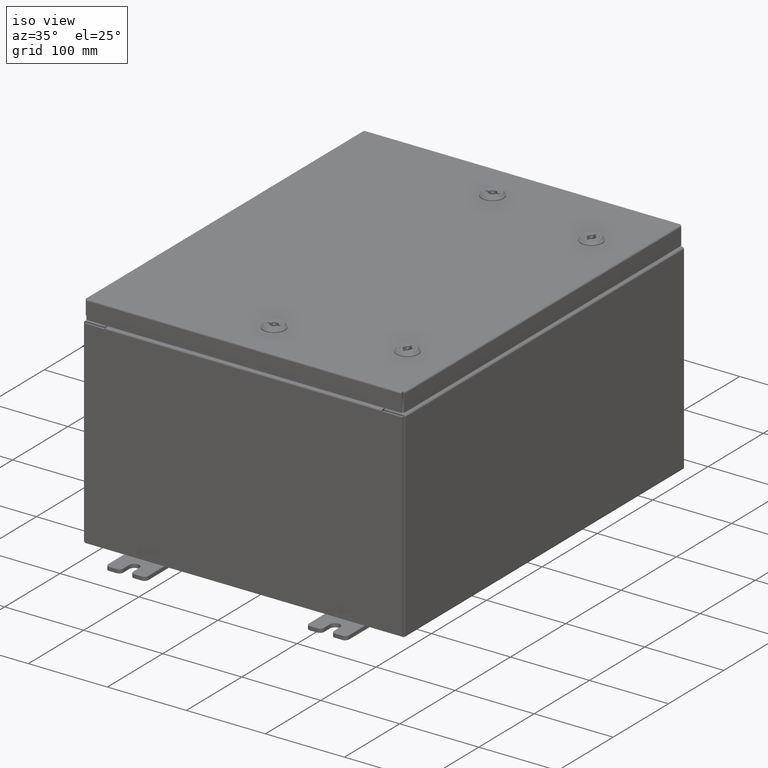
[diagram: clean part render]
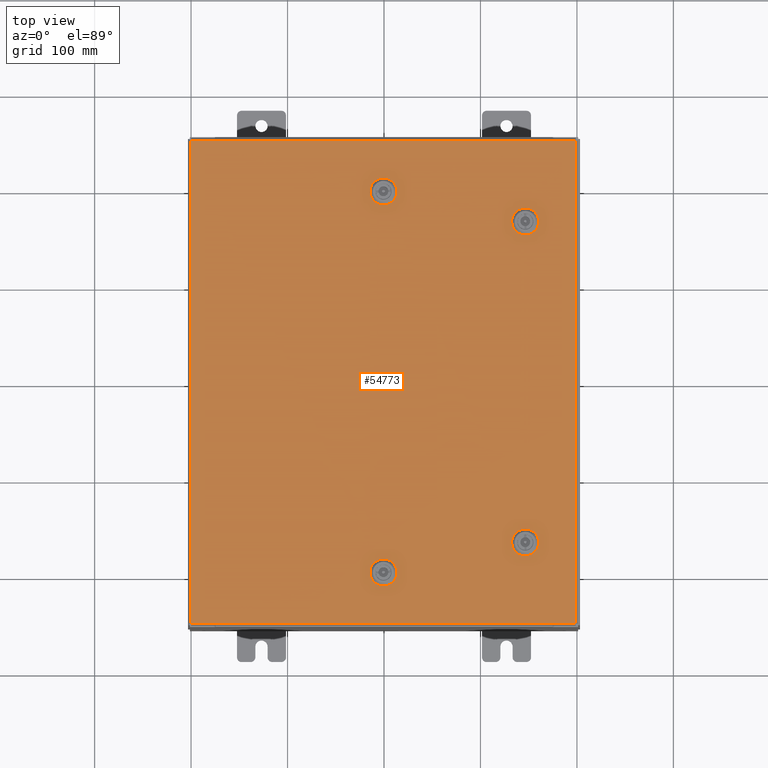
[diagram: tour spotlight — one face highlighted and labeled with its STEP entity id]
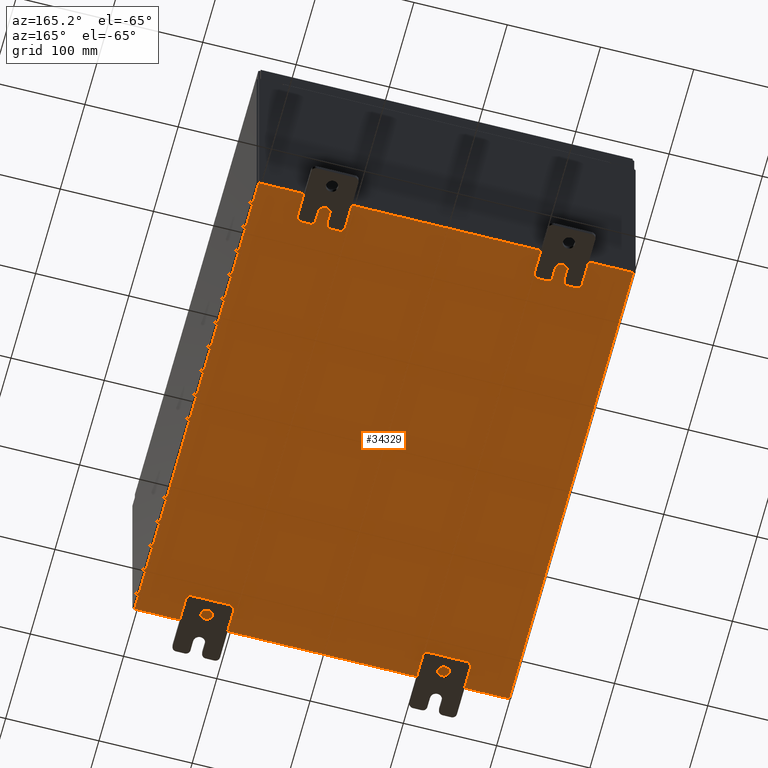
[diagram: tour spotlight — one face highlighted and labeled with its STEP entity id]
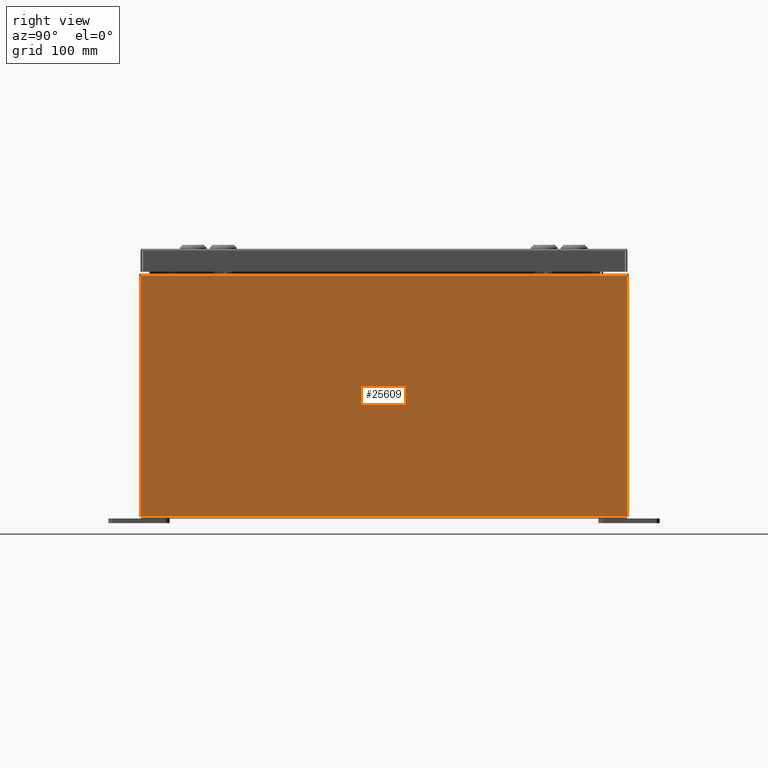
[diagram: tour spotlight — one face highlighted and labeled with its STEP entity id]
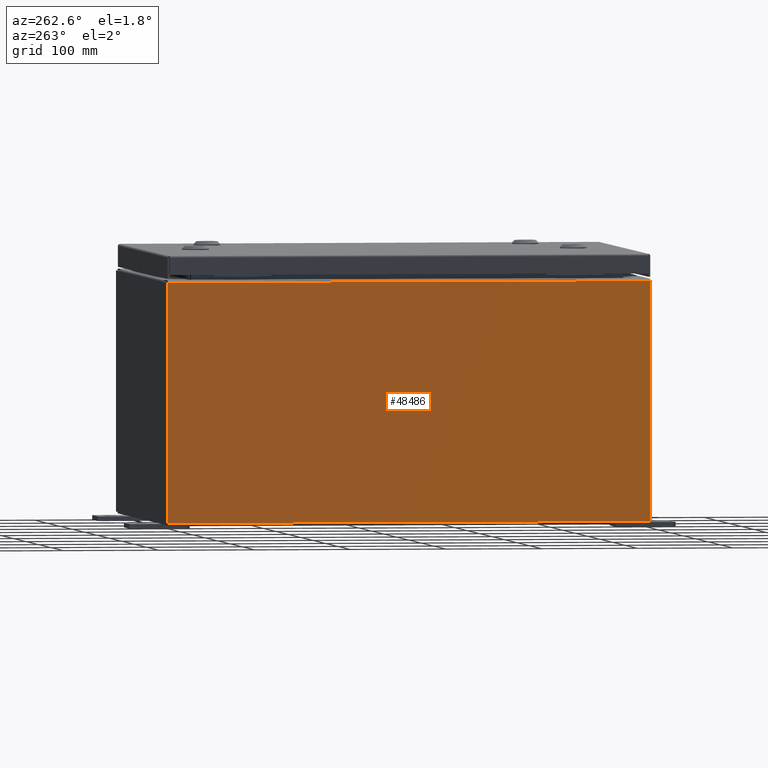
[diagram: tour spotlight — one face highlighted and labeled with its STEP entity id]
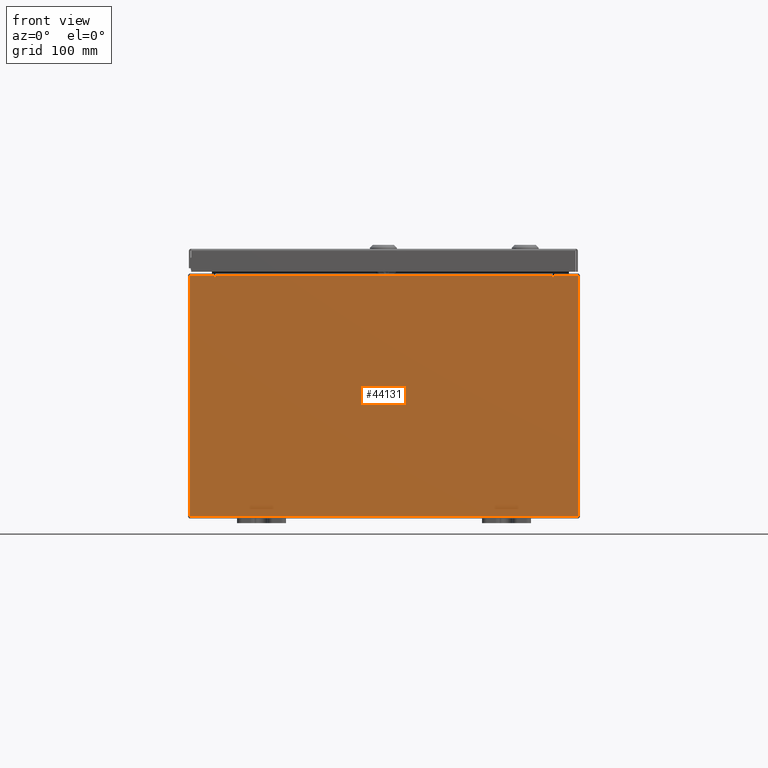
[diagram: tour spotlight — one face highlighted and labeled with its STEP entity id]
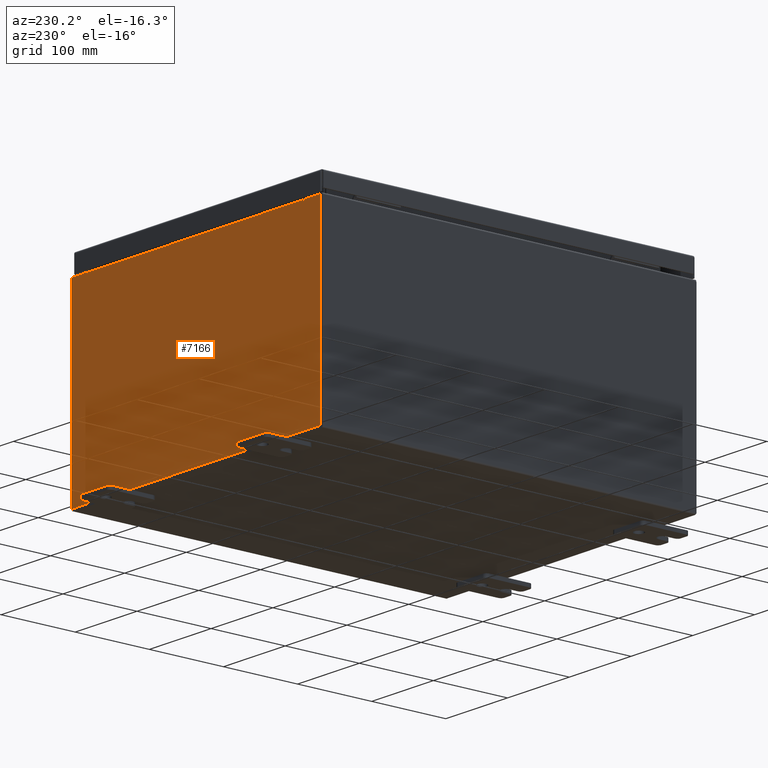
[diagram: tour spotlight — one face highlighted and labeled with its STEP entity id]
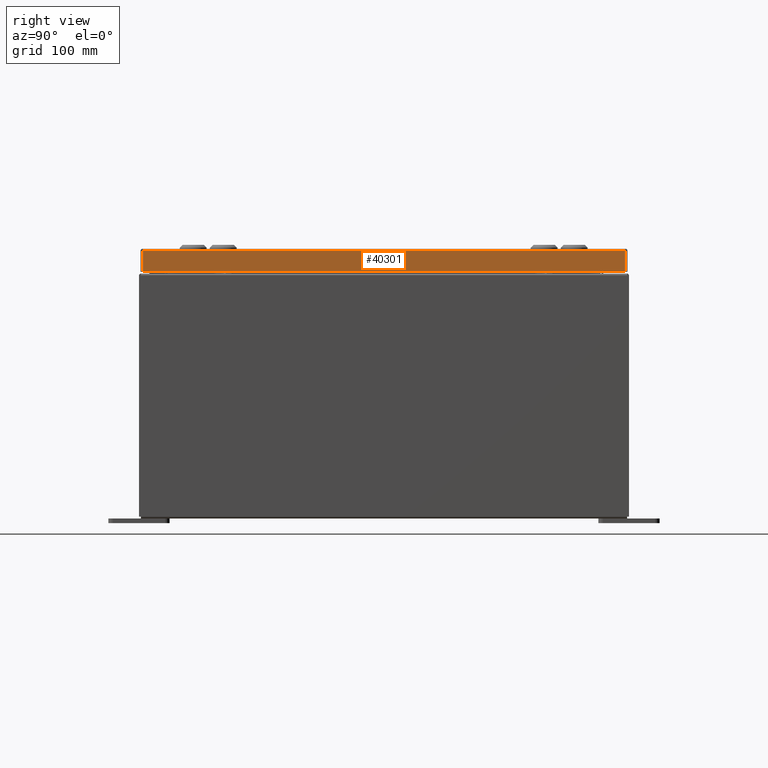
[diagram: tour spotlight — one face highlighted and labeled with its STEP entity id]
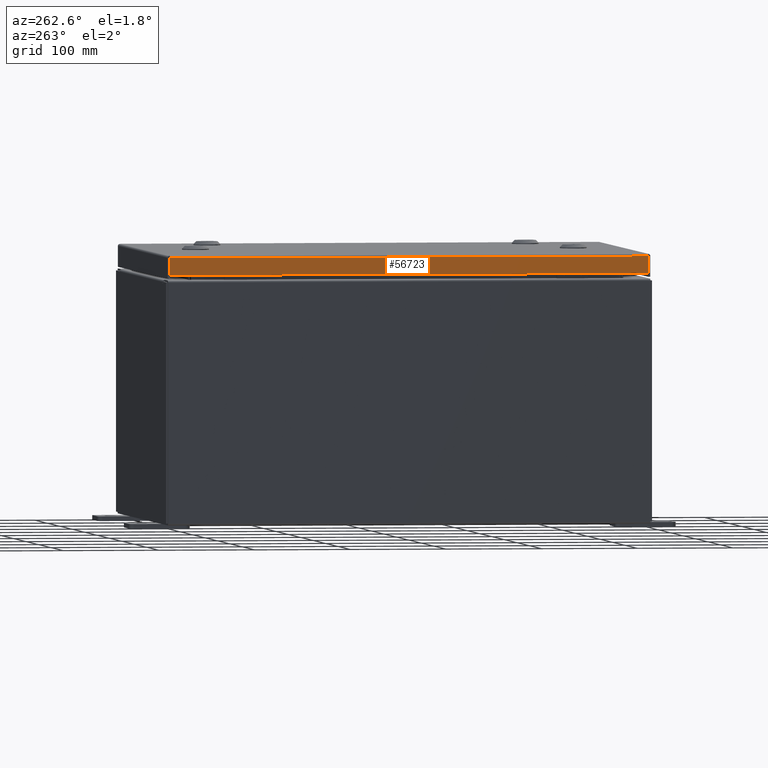
[diagram: tour spotlight — one face highlighted and labeled with its STEP entity id]
A machine part: a face-by-face anatomy tour. The part has 3794 B-rep faces; the first image is the clean iso view, then the 8 largest visible faces are spotlighted one at a time (largest first), each with its STEP entity span.

Face 1 — top view, entity #54773. In plain terms, the highlighted planar face has unit normal (0, 0, -1).
Definition (entity closure, byte-faithful):
#88 = CIRCLE ( 'NONE', #51247, 0.4424999999999972800 ) ;
#90 = VECTOR ( 'NONE', #53693, 39.37007874015748100 ) ;
#238 = CARTESIAN_POINT ( 'NONE',  ( 6.182800000000003000, 6.761952375267896700, 0.0000000000000000000 ) ) ;
#458 = CARTESIAN_POINT ( 'NONE',  ( 6.182800000000005600, 6.363047624732128100, 0.0000000000000000000 ) ) ;
#837 = CARTESIAN_POINT ( 'NONE',  ( 0.1994523752679067700, 8.182799999999980800, 0.0000000000000000000 ) ) ;
#918 = CARTESIAN_POINT ( 'NONE',  ( -0.1994523752678657400, -8.182799999999987900, 0.0000000000000000000 ) ) ;
#1329 = CARTESIAN_POINT ( 'NONE',  ( 0.1994523752678995500, 7.392799999999993200, 0.0000000000000000000 ) ) ;
#1589 = VERTEX_POINT ( 'NONE', #28337 ) ;
#2586 = VERTEX_POINT ( 'NONE', #48887 ) ;
#3014 = CARTESIAN_POINT ( 'NONE',  ( 0.1994523752679070700, -8.182799999999980800, -5.238409111919896100E-014 ) ) ;
#3247 = CARTESIAN_POINT ( 'NONE',  ( 0.4425000000000126100, 7.787799999999989200, 0.0000000000000000000 ) ) ;
#3693 = CARTESIAN_POINT ( 'NONE',  ( 7.849800000000000100, -9.849800000000001900, -2.219626494852214000E-016 ) ) ;
#4012 = EDGE_CURVE ( 'NONE', #2586, #1589, #9767, .T. ) ;
#4296 = CARTESIAN_POINT ( 'NONE',  ( 5.392800000000015400, 6.761952375267901200, 0.0000000000000000000 ) ) ;
#4460 = ORIENTED_EDGE ( 'NONE', *, *, #37584, .F. ) ;
#4526 = LINE ( 'NONE', #26519, #51751 ) ;
#4909 = ORIENTED_EDGE ( 'NONE', *, *, #25694, .T. ) ;
#5144 = VERTEX_POINT ( 'NONE', #37528 ) ;
#5743 = CARTESIAN_POINT ( 'NONE',  ( 0.1994523752678995500, 7.392799999999993200, 0.0000000000000000000 ) ) ;
#5851 = CARTESIAN_POINT ( 'NONE',  ( 5.392800000000015400, 6.761952375267901200, 0.0000000000000000000 ) ) ;
#6407 = CARTESIAN_POINT ( 'NONE',  ( 1.529834876451987200E-014, 7.787799999999989200, 0.0000000000000000000 ) ) ;
#6667 = DIRECTION ( 'NONE',  ( 0.0000000000000000000, 1.000000000000000000, 0.0000000000000000000 ) ) ;
#6804 = PLANE ( 'NONE',  #37503 ) ;
#7044 = EDGE_CURVE ( 'NONE', #55903, #12113, #12397, .T. ) ;
#8265 = ORIENTED_EDGE ( 'NONE', *, *, #20989, .F. ) ;
#8655 = DIRECTION ( 'NONE',  ( -0.0000000000000000000, -6.982962677686266700E-015, 1.000000000000000000 ) ) ;
#9272 = ORIENTED_EDGE ( 'NONE', *, *, #49510, .F. ) ;
#9437 = LINE ( 'NONE', #16533, #46773 ) ;
#9767 = LINE ( 'NONE', #39837, #26472 ) ;
#10013 = VECTOR ( 'NONE', #12850, 39.37007874015748100 ) ;
#11077 = ORIENTED_EDGE ( 'NONE', *, *, #43659, .F. ) ;
#11197 = VERTEX_POINT ( 'NONE', #23316 ) ;
#11303 = DIRECTION ( 'NONE',  ( 1.000000000000000000, 0.0000000000000000000, 0.0000000000000000000 ) ) ;
#11431 = EDGE_CURVE ( 'NONE', #11797, #33899, #4526, .T. ) ;
#11553 = DIRECTION ( 'NONE',  ( 1.000000000000000000, 1.369674334534795400E-014, 9.732121487607481600E-029 ) ) ;
#11797 = VERTEX_POINT ( 'NONE', #23505 ) ;
#11941 = VECTOR ( 'NONE', #40525, 39.37007874015748100 ) ;
#11999 = VERTEX_POINT ( 'NONE', #53789 ) ;
#12062 = FACE_OUTER_BOUND ( 'NONE', #49611, .T. ) ;
#12113 = VERTEX_POINT ( 'NONE', #56022 ) ;
#12397 = LINE ( 'NONE', #5851, #51251 ) ;
#12850 = DIRECTION ( 'NONE',  ( 8.218046007208762600E-015, -1.000000000000000000, -6.982962677686248600E-015 ) ) ;
#13154 = CARTESIAN_POINT ( 'NONE',  ( 6.182800000000003800, -6.761952375267896700, -2.443558770110843000E-013 ) ) ;
#14048 = ORIENTED_EDGE ( 'NONE', *, *, #44592, .F. ) ;
#16074 = CARTESIAN_POINT ( 'NONE',  ( 5.787800000000007800, 6.562500000000010700, 0.0000000000000000000 ) ) ;
#16244 = VERTEX_POINT ( 'NONE', #918 ) ;
#16316 = CIRCLE ( 'NONE', #30355, 0.4424999999999983400 ) ;
#16533 = CARTESIAN_POINT ( 'NONE',  ( 6.182800000000003800, -6.761952375267896700, -2.443558770110843000E-013 ) ) ;
#17007 = VERTEX_POINT ( 'NONE', #1329 ) ;
#17087 = ORIENTED_EDGE ( 'NONE', *, *, #59627, .F. ) ;
#17597 = CARTESIAN_POINT ( 'NONE',  ( 5.787800000000007800, 6.562500000000010700, 0.0000000000000000000 ) ) ;
#18110 = DIRECTION ( 'NONE',  ( -0.0000000000000000000, -6.982962677686266700E-015, 1.000000000000000000 ) ) ;
#18446 = CARTESIAN_POINT ( 'NONE',  ( 5.392800000000015400, -6.761952375267901200, -2.443558770110843000E-013 ) ) ;
#18539 = EDGE_CURVE ( 'NONE', #17007, #52682, #44565, .T. ) ;
#18567 = AXIS2_PLACEMENT_3D ( 'NONE', #47305, #18110, #52216 ) ;
#19263 = ORIENTED_EDGE ( 'NONE', *, *, #40504, .F. ) ;
#20452 = CARTESIAN_POINT ( 'NONE',  ( 1.529834876451987200E-014, 7.787799999999989200, 0.0000000000000000000 ) ) ;
#20985 = DIRECTION ( 'NONE',  ( 1.000000000000000000, 0.0000000000000000000, 0.0000000000000000000 ) ) ;
#20989 = EDGE_CURVE ( 'NONE', #57756, #28371, #57896, .T. ) ;
#21121 = CARTESIAN_POINT ( 'NONE',  ( 0.1994523752679067700, -8.182799999999980800, -5.238409111919896100E-014 ) ) ;
#21277 = CARTESIAN_POINT ( 'NONE',  ( 1.529834876451987200E-014, 7.787799999999989200, 0.0000000000000000000 ) ) ;
#21328 = CIRCLE ( 'NONE', #53629, 0.4424999999999972800 ) ;
#21358 = EDGE_CURVE ( 'NONE', #16244, #39471, #47179, .T. ) ;
#21365 = EDGE_CURVE ( 'NONE', #33899, #5144, #44142, .T. ) ;
#21379 = LINE ( 'NONE', #837, #22891 ) ;
#21585 = AXIS2_PLACEMENT_3D ( 'NONE', #21277, #55378, #26177 ) ;
#22497 = DIRECTION ( 'NONE',  ( 1.000000000000000000, 0.0000000000000000000, 0.0000000000000000000 ) ) ;
#22526 = VERTEX_POINT ( 'NONE', #62629 ) ;
#22891 = VECTOR ( 'NONE', #29973, 39.37007874015748100 ) ;
#23136 = DIRECTION ( 'NONE',  ( -0.0000000000000000000, -6.982962677686266700E-015, 1.000000000000000000 ) ) ;
#23316 = CARTESIAN_POINT ( 'NONE',  ( -7.849800000000000100, 9.849799999999996600, -2.048885995248197400E-016 ) ) ;
#23505 = CARTESIAN_POINT ( 'NONE',  ( -7.849800000000000100, -9.849800000000001900, -2.048885995248197400E-016 ) ) ;
#23824 = ORIENTED_EDGE ( 'NONE', *, *, #54601, .F. ) ;
#24736 = CARTESIAN_POINT ( 'NONE',  ( 1.529834876451987200E-014, -7.787799999999989200, -4.962582086151294400E-014 ) ) ;
#24887 = LINE ( 'NONE', #50112, #11941 ) ;
#25005 = FACE_BOUND ( 'NONE', #45216, .T. ) ;
#25356 = DIRECTION ( 'NONE',  ( 1.000000000000000000, 0.0000000000000000000, 0.0000000000000000000 ) ) ;
#25518 = AXIS2_PLACEMENT_3D ( 'NONE', #6407, #40464, #11303 ) ;
#25552 = EDGE_LOOP ( 'NONE', ( #34641, #17087, #29715, #30002, #11077 ) ) ;
#25694 = EDGE_CURVE ( 'NONE', #11197, #11797, #56072, .T. ) ;
#25968 = LINE ( 'NONE', #238, #90 ) ;
#26027 = CIRCLE ( 'NONE', #37323, 0.4424999999999979500 ) ;
#26177 = DIRECTION ( 'NONE',  ( 1.000000000000000000, 0.0000000000000000000, 0.0000000000000000000 ) ) ;
#26212 = CIRCLE ( 'NONE', #43715, 0.4424999999999983400 ) ;
#26367 = DIRECTION ( 'NONE',  ( -1.000000000000000000, 0.0000000000000000000, -0.0000000000000000000 ) ) ;
#26472 = VECTOR ( 'NONE', #30239, 39.37007874015748100 ) ;
#26518 = FACE_BOUND ( 'NONE', #28876, .T. ) ;
#26519 = CARTESIAN_POINT ( 'NONE',  ( -7.849800000000000100, -9.849800000000001900, -2.048885995248197400E-016 ) ) ;
#27437 = DIRECTION ( 'NONE',  ( -0.0000000000000000000, -6.982962677686266700E-015, 1.000000000000000000 ) ) ;
#27547 = ORIENTED_EDGE ( 'NONE', *, *, #56750, .T. ) ;
#28105 = EDGE_CURVE ( 'NONE', #28371, #31293, #9437, .T. ) ;
#28337 = CARTESIAN_POINT ( 'NONE',  ( -0.1994523752678689600, -7.392799999999992300, -4.686755060382689000E-014 ) ) ;
#28371 = VERTEX_POINT ( 'NONE', #13154 ) ;
#28876 = EDGE_LOOP ( 'NONE', ( #35101, #19263, #58745, #9272 ) ) ;
#29141 = ORIENTED_EDGE ( 'NONE', *, *, #48730, .F. ) ;
#29651 = DIRECTION ( 'NONE',  ( 0.0000000000000000000, 1.000000000000000000, 6.982962677686269100E-015 ) ) ;
#29715 = ORIENTED_EDGE ( 'NONE', *, *, #4012, .F. ) ;
#29973 = DIRECTION ( 'NONE',  ( -1.000000000000000000, 1.369674334534795400E-014, 0.0000000000000000000 ) ) ;
#30002 = ORIENTED_EDGE ( 'NONE', *, *, #45467, .F. ) ;
#30239 = DIRECTION ( 'NONE',  ( -1.000000000000000000, 2.739348669069617500E-015, 1.946424297521515400E-029 ) ) ;
#30355 = AXIS2_PLACEMENT_3D ( 'NONE', #37807, #8655, #42726 ) ;
#30716 = ORIENTED_EDGE ( 'NONE', *, *, #32876, .F. ) ;
#31165 = VECTOR ( 'NONE', #11553, 39.37007874015748100 ) ;
#31293 = VERTEX_POINT ( 'NONE', #40266 ) ;
#31747 = CARTESIAN_POINT ( 'NONE',  ( 5.392800000000012700, -6.363047624732128100, 0.0000000000000000000 ) ) ;
#32876 = EDGE_CURVE ( 'NONE', #61025, #57756, #50388, .T. ) ;
#33001 = ORIENTED_EDGE ( 'NONE', *, *, #11431, .T. ) ;
#33123 = DIRECTION ( 'NONE',  ( 0.0000000000000000000, -1.000000000000000000, 0.0000000000000000000 ) ) ;
#33137 = ORIENTED_EDGE ( 'NONE', *, *, #34392, .F. ) ;
#33190 = ORIENTED_EDGE ( 'NONE', *, *, #21365, .T. ) ;
#33899 = VERTEX_POINT ( 'NONE', #3693 ) ;
#34392 = EDGE_CURVE ( 'NONE', #31293, #61025, #37239, .T. ) ;
#34641 = ORIENTED_EDGE ( 'NONE', *, *, #21358, .F. ) ;
#35101 = ORIENTED_EDGE ( 'NONE', *, *, #61395, .F. ) ;
#37239 = CIRCLE ( 'NONE', #18567, 0.4424999999999983400 ) ;
#37323 = AXIS2_PLACEMENT_3D ( 'NONE', #20452, #54555, #25356 ) ;
#37503 = AXIS2_PLACEMENT_3D ( 'NONE', #45780, #55577, #26367 ) ;
#37528 = CARTESIAN_POINT ( 'NONE',  ( 7.849800000000000100, 9.849799999999996600, -2.048885995248197400E-016 ) ) ;
#37584 = EDGE_CURVE ( 'NONE', #52682, #51479, #43955, .T. ) ;
#37807 = CARTESIAN_POINT ( 'NONE',  ( 1.529834876451987200E-014, -7.787799999999989200, -4.962582086151294400E-014 ) ) ;
#37927 = FACE_BOUND ( 'NONE', #51399, .T. ) ;
#38523 = CARTESIAN_POINT ( 'NONE',  ( -0.1994523752678657400, 8.182799999999986100, 0.0000000000000000000 ) ) ;
#39471 = VERTEX_POINT ( 'NONE', #3014 ) ;
#39837 = CARTESIAN_POINT ( 'NONE',  ( 0.1994523752678995500, -7.392799999999993200, -4.686755060382689600E-014 ) ) ;
#39904 = DIRECTION ( 'NONE',  ( -1.095739467627835000E-014, -1.000000000000000000, 0.0000000000000000000 ) ) ;
#40266 = CARTESIAN_POINT ( 'NONE',  ( 6.182800000000007400, -6.363047624732128100, -2.415703400261412200E-013 ) ) ;
#40464 = DIRECTION ( 'NONE',  ( 0.0000000000000000000, 0.0000000000000000000, 1.000000000000000000 ) ) ;
#40504 = EDGE_CURVE ( 'NONE', #12113, #57345, #26212, .T. ) ;
#40525 = DIRECTION ( 'NONE',  ( -1.000000000000000000, -0.0000000000000000000, -0.0000000000000000000 ) ) ;
#40733 = CARTESIAN_POINT ( 'NONE',  ( 7.849800000000000100, -9.849800000000001900, -2.219626494852214000E-016 ) ) ;
#41143 = ORIENTED_EDGE ( 'NONE', *, *, #28105, .F. ) ;
#41246 = DIRECTION ( 'NONE',  ( 1.000000000000000000, -0.0000000000000000000, -0.0000000000000000000 ) ) ;
#42544 = VECTOR ( 'NONE', #49606, 39.37007874015748100 ) ;
#42726 = DIRECTION ( 'NONE',  ( 0.0000000000000000000, 1.000000000000000000, 6.982962677686252500E-015 ) ) ;
#43097 = VECTOR ( 'NONE', #33123, 39.37007874015748100 ) ;
#43659 = EDGE_CURVE ( 'NONE', #39471, #22526, #55761, .T. ) ;
#43715 = AXIS2_PLACEMENT_3D ( 'NONE', #16074, #50181, #20985 ) ;
#43955 = CIRCLE ( 'NONE', #21585, 0.4424999999999973400 ) ;
#44142 = LINE ( 'NONE', #40733, #57085 ) ;
#44565 = CIRCLE ( 'NONE', #25518, 0.4424999999999973400 ) ;
#44592 = EDGE_CURVE ( 'NONE', #51479, #46842, #21379, .T. ) ;
#45216 = EDGE_LOOP ( 'NONE', ( #23824, #29141, #14048, #4460, #62219 ) ) ;
#45467 = EDGE_CURVE ( 'NONE', #22526, #2586, #21328, .T. ) ;
#45755 = DIRECTION ( 'NONE',  ( 8.218046007208852600E-015, 1.000000000000000000, 6.982962677686325100E-015 ) ) ;
#45780 = CARTESIAN_POINT ( 'NONE',  ( 0.0000000000000000000, 0.0000000000000000000, 0.0000000000000000000 ) ) ;
#46773 = VECTOR ( 'NONE', #45755, 39.37007874015748100 ) ;
#46842 = VERTEX_POINT ( 'NONE', #38523 ) ;
#47179 = LINE ( 'NONE', #21121, #31165 ) ;
#47305 = CARTESIAN_POINT ( 'NONE',  ( 5.787800000000008700, -6.562500000000010700, -2.429631085186127400E-013 ) ) ;
#48730 = EDGE_CURVE ( 'NONE', #46842, #11999, #26027, .T. ) ;
#48887 = CARTESIAN_POINT ( 'NONE',  ( 0.1994523752678995500, -7.392799999999993200, -4.686755060382689600E-014 ) ) ;
#49510 = EDGE_CURVE ( 'NONE', #54600, #55903, #88, .T. ) ;
#49606 = DIRECTION ( 'NONE',  ( 1.000000000000000000, 2.739348669069617500E-015, -0.0000000000000000000 ) ) ;
#49611 = EDGE_LOOP ( 'NONE', ( #33001, #33190, #27547, #4909 ) ) ;
#50112 = CARTESIAN_POINT ( 'NONE',  ( 7.849800000000000100, 9.849799999999996600, -2.048885995248197400E-016 ) ) ;
#50181 = DIRECTION ( 'NONE',  ( 0.0000000000000000000, 0.0000000000000000000, 1.000000000000000000 ) ) ;
#50388 = LINE ( 'NONE', #51835, #10013 ) ;
#50911 = FACE_BOUND ( 'NONE', #25552, .T. ) ;
#51247 = AXIS2_PLACEMENT_3D ( 'NONE', #17597, #51695, #22497 ) ;
#51251 = VECTOR ( 'NONE', #39904, 39.37007874015748100 ) ;
#51399 = EDGE_LOOP ( 'NONE', ( #30716, #33137, #41143, #8265 ) ) ;
#51479 = VERTEX_POINT ( 'NONE', #54943 ) ;
#51695 = DIRECTION ( 'NONE',  ( 0.0000000000000000000, 0.0000000000000000000, 1.000000000000000000 ) ) ;
#51751 = VECTOR ( 'NONE', #41246, 39.37007874015748100 ) ;
#51764 = AXIS2_PLACEMENT_3D ( 'NONE', #52342, #23136, #57233 ) ;
#51835 = CARTESIAN_POINT ( 'NONE',  ( 5.392800000000015400, -6.761952375267901200, -2.443558770110843000E-013 ) ) ;
#52216 = DIRECTION ( 'NONE',  ( 0.0000000000000000000, 1.000000000000000000, 6.982962677686270700E-015 ) ) ;
#52342 = CARTESIAN_POINT ( 'NONE',  ( 5.787800000000008700, -6.562500000000010700, -2.429631085186127400E-013 ) ) ;
#52682 = VERTEX_POINT ( 'NONE', #3247 ) ;
#53629 = AXIS2_PLACEMENT_3D ( 'NONE', #56640, #27437, #61542 ) ;
#53693 = DIRECTION ( 'NONE',  ( -8.218046007208852600E-015, 1.000000000000000000, -0.0000000000000000000 ) ) ;
#53789 = CARTESIAN_POINT ( 'NONE',  ( -0.1994523752678689600, 7.392799999999992300, 0.0000000000000000000 ) ) ;
#54510 = CARTESIAN_POINT ( 'NONE',  ( 6.182800000000003000, 6.761952375267896700, 0.0000000000000000000 ) ) ;
#54555 = DIRECTION ( 'NONE',  ( 0.0000000000000000000, 0.0000000000000000000, 1.000000000000000000 ) ) ;
#54600 = VERTEX_POINT ( 'NONE', #54510 ) ;
#54601 = EDGE_CURVE ( 'NONE', #11999, #17007, #55535, .T. ) ;
#54773 = ADVANCED_FACE ( 'NONE', ( #37927, #26518, #50911, #25005, #12062 ), #6804, .F. ) ;
#54943 = CARTESIAN_POINT ( 'NONE',  ( 0.1994523752679068500, 8.182799999999980800, 0.0000000000000000000 ) ) ;
#55378 = DIRECTION ( 'NONE',  ( 0.0000000000000000000, 0.0000000000000000000, 1.000000000000000000 ) ) ;
#55535 = LINE ( 'NONE', #5743, #42544 ) ;
#55577 = DIRECTION ( 'NONE',  ( 0.0000000000000000000, 0.0000000000000000000, -1.000000000000000000 ) ) ;
#55761 = CIRCLE ( 'NONE', #60128, 0.4424999999999972800 ) ;
#55903 = VERTEX_POINT ( 'NONE', #4296 ) ;
#56022 = CARTESIAN_POINT ( 'NONE',  ( 5.392800000000011800, 6.363047624732128100, 0.0000000000000000000 ) ) ;
#56072 = LINE ( 'NONE', #62294, #43097 ) ;
#56640 = CARTESIAN_POINT ( 'NONE',  ( 1.529834876451987200E-014, -7.787799999999989200, -4.962582086151294400E-014 ) ) ;
#56750 = EDGE_CURVE ( 'NONE', #5144, #11197, #24887, .T. ) ;
#57085 = VECTOR ( 'NONE', #6667, 39.37007874015748100 ) ;
#57233 = DIRECTION ( 'NONE',  ( 0.0000000000000000000, 1.000000000000000000, 6.982962677686287200E-015 ) ) ;
#57345 = VERTEX_POINT ( 'NONE', #458 ) ;
#57756 = VERTEX_POINT ( 'NONE', #18446 ) ;
#57896 = CIRCLE ( 'NONE', #51764, 0.4424999999999972800 ) ;
#58745 = ORIENTED_EDGE ( 'NONE', *, *, #7044, .F. ) ;
#58844 = DIRECTION ( 'NONE',  ( -0.0000000000000000000, -6.982962677686266700E-015, 1.000000000000000000 ) ) ;
#59627 = EDGE_CURVE ( 'NONE', #1589, #16244, #16316, .T. ) ;
#60128 = AXIS2_PLACEMENT_3D ( 'NONE', #24736, #58844, #29651 ) ;
#61025 = VERTEX_POINT ( 'NONE', #31747 ) ;
#61395 = EDGE_CURVE ( 'NONE', #57345, #54600, #25968, .T. ) ;
#61542 = DIRECTION ( 'NONE',  ( 0.0000000000000000000, 1.000000000000000000, 6.982962677686269100E-015 ) ) ;
#62219 = ORIENTED_EDGE ( 'NONE', *, *, #18539, .F. ) ;
#62294 = CARTESIAN_POINT ( 'NONE',  ( -7.849800000000000100, 9.849799999999996600, -2.048885995248197400E-016 ) ) ;
#62629 = CARTESIAN_POINT ( 'NONE',  ( 0.4425000000000126100, -7.787799999999989200, -4.962582086151294400E-014 ) ) ;

Face 2 — auxiliary view, entity #34329. In plain terms, the highlighted planar face has unit normal (0, 0, -1).
Definition (entity closure, byte-faithful):
#356 = CARTESIAN_POINT ( 'NONE',  ( -7.999999999999997300, 9.925299999999998200, -0.07470000000000000300 ) ) ;
#568 = DIRECTION ( 'NONE',  ( -1.000000000000000000, -0.0000000000000000000, -0.0000000000000000000 ) ) ;
#3096 = EDGE_CURVE ( 'NONE', #13106, #4224, #34915, .T. ) ;
#4224 = VERTEX_POINT ( 'NONE', #13386 ) ;
#5542 = AXIS2_PLACEMENT_3D ( 'NONE', #7718, #12607, #46703 ) ;
#7718 = CARTESIAN_POINT ( 'NONE',  ( 0.0000000000000000000, 0.0000000000000000000, -0.07470000000000000300 ) ) ;
#7943 = VERTEX_POINT ( 'NONE', #9067 ) ;
#8069 = ORIENTED_EDGE ( 'NONE', *, *, #37074, .F. ) ;
#8270 = CARTESIAN_POINT ( 'NONE',  ( 7.912300000000001900, 9.925299999999992900, -0.07469999999999994700 ) ) ;
#8907 = VECTOR ( 'NONE', #10313, 39.37007874015748100 ) ;
#9067 = CARTESIAN_POINT ( 'NONE',  ( 7.912300000000001900, -9.925300000000001800, -0.07470000000000000300 ) ) ;
#10082 = EDGE_CURVE ( 'NONE', #15833, #7943, #48026, .T. ) ;
#10287 = DIRECTION ( 'NONE',  ( -0.0000000000000000000, -1.000000000000000000, -0.0000000000000000000 ) ) ;
#10313 = DIRECTION ( 'NONE',  ( 1.000000000000000000, 0.0000000000000000000, 0.0000000000000000000 ) ) ;
#12607 = DIRECTION ( 'NONE',  ( 0.0000000000000000000, 0.0000000000000000000, -1.000000000000000000 ) ) ;
#13106 = VERTEX_POINT ( 'NONE', #47722 ) ;
#13386 = CARTESIAN_POINT ( 'NONE',  ( -7.912299999999997400, 9.925299999999998200, -0.07470000000000000300 ) ) ;
#15833 = VERTEX_POINT ( 'NONE', #8270 ) ;
#19343 = DIRECTION ( 'NONE',  ( -0.0000000000000000000, 1.000000000000000000, -0.0000000000000000000 ) ) ;
#21861 = LINE ( 'NONE', #44377, #8907 ) ;
#22096 = VECTOR ( 'NONE', #10287, 39.37007874015748100 ) ;
#22115 = EDGE_LOOP ( 'NONE', ( #8069, #52374, #52268, #34343 ) ) ;
#22970 = CARTESIAN_POINT ( 'NONE',  ( -7.912299999999997400, -9.925300000000001800, -0.07469999999999994700 ) ) ;
#27339 = FACE_OUTER_BOUND ( 'NONE', #22115, .T. ) ;
#31796 = EDGE_CURVE ( 'NONE', #15833, #4224, #52640, .T. ) ;
#34329 = ADVANCED_FACE ( 'NONE', ( #27339 ), #36873, .T. ) ;
#34343 = ORIENTED_EDGE ( 'NONE', *, *, #10082, .T. ) ;
#34915 = LINE ( 'NONE', #22970, #59313 ) ;
#36873 = PLANE ( 'NONE',  #5542 ) ;
#37074 = EDGE_CURVE ( 'NONE', #13106, #7943, #21861, .T. ) ;
#44377 = CARTESIAN_POINT ( 'NONE',  ( -7.999999999999997300, -9.925300000000001800, -0.07470000000000000300 ) ) ;
#46703 = DIRECTION ( 'NONE',  ( -1.000000000000000000, 0.0000000000000000000, -0.0000000000000000000 ) ) ;
#47722 = CARTESIAN_POINT ( 'NONE',  ( -7.912299999999997400, -9.925300000000000000, -0.07469999999999994700 ) ) ;
#48026 = LINE ( 'NONE', #59060, #22096 ) ;
#51095 = VECTOR ( 'NONE', #568, 39.37007874015748100 ) ;
#52268 = ORIENTED_EDGE ( 'NONE', *, *, #31796, .F. ) ;
#52374 = ORIENTED_EDGE ( 'NONE', *, *, #3096, .T. ) ;
#52640 = LINE ( 'NONE', #356, #51095 ) ;
#59060 = CARTESIAN_POINT ( 'NONE',  ( 7.912300000000001900, 9.925299999999998200, -0.07469999999999994700 ) ) ;
#59313 = VECTOR ( 'NONE', #19343, 39.37007874015748100 ) ;

Face 3 — right view, entity #25609. In plain terms, the highlighted planar face has unit normal (-1, 0, 0).
Definition (entity closure, byte-faithful):
#1660 = DIRECTION ( 'NONE',  ( -0.0000000000000000000, -1.000000000000000000, -0.0000000000000000000 ) ) ;
#2473 = EDGE_CURVE ( 'NONE', #54827, #20069, #51734, .T. ) ;
#2964 = VECTOR ( 'NONE', #1660, 39.37007874015748100 ) ;
#5436 = LINE ( 'NONE', #13807, #18358 ) ;
#6135 = CARTESIAN_POINT ( 'NONE',  ( 8.000000000000035500, 9.925299999999991100, 9.837599999999998300 ) ) ;
#6468 = CARTESIAN_POINT ( 'NONE',  ( 8.000000000000001800, -9.925300000000001800, -2.844547654289869600E-014 ) ) ;
#8753 = EDGE_CURVE ( 'NONE', #43355, #54827, #5436, .T. ) ;
#13807 = CARTESIAN_POINT ( 'NONE',  ( 8.000000000000001800, 9.925299999999998200, -2.625999814796728400E-014 ) ) ;
#16670 = EDGE_LOOP ( 'NONE', ( #39380, #28322, #27710, #55714 ) ) ;
#16811 = VECTOR ( 'NONE', #60551, 39.37007874015748100 ) ;
#17782 = PLANE ( 'NONE',  #42386 ) ;
#18358 = VECTOR ( 'NONE', #18699, 39.37007874015748100 ) ;
#18699 = DIRECTION ( 'NONE',  ( 3.523082860860888200E-015, -2.201926788038055100E-016, 1.000000000000000000 ) ) ;
#19477 = EDGE_CURVE ( 'NONE', #20069, #34132, #47535, .T. ) ;
#19864 = LINE ( 'NONE', #31371, #16811 ) ;
#20069 = VERTEX_POINT ( 'NONE', #59067 ) ;
#21138 = DIRECTION ( 'NONE',  ( -3.523082860860888200E-015, 0.0000000000000000000, -1.000000000000000000 ) ) ;
#21632 = VECTOR ( 'NONE', #21138, 39.37007874015748100 ) ;
#25609 = ADVANCED_FACE ( 'NONE', ( #46168 ), #17782, .F. ) ;
#27576 = DIRECTION ( 'NONE',  ( -1.000000000000000000, 0.0000000000000000000, 3.523082860860887800E-015 ) ) ;
#27710 = ORIENTED_EDGE ( 'NONE', *, *, #44708, .F. ) ;
#28322 = ORIENTED_EDGE ( 'NONE', *, *, #19477, .T. ) ;
#29258 = CARTESIAN_POINT ( 'NONE',  ( 8.000000000000001800, -9.925300000000001800, 0.01299999999999984300 ) ) ;
#31371 = CARTESIAN_POINT ( 'NONE',  ( 8.000000000000001800, -9.925300000000001800, 0.01299999999999984700 ) ) ;
#34132 = VERTEX_POINT ( 'NONE', #29258 ) ;
#34235 = CARTESIAN_POINT ( 'NONE',  ( 8.000000000000001800, 9.925299999999992900, 0.01299999999999984700 ) ) ;
#39380 = ORIENTED_EDGE ( 'NONE', *, *, #2473, .T. ) ;
#41494 = CARTESIAN_POINT ( 'NONE',  ( 8.000000000000035500, 9.925299999999989400, 9.837599999999998300 ) ) ;
#42386 = AXIS2_PLACEMENT_3D ( 'NONE', #46984, #27576, #61671 ) ;
#43355 = VERTEX_POINT ( 'NONE', #34235 ) ;
#44708 = EDGE_CURVE ( 'NONE', #43355, #34132, #19864, .T. ) ;
#46168 = FACE_OUTER_BOUND ( 'NONE', #16670, .T. ) ;
#46984 = CARTESIAN_POINT ( 'NONE',  ( 8.000000000000001800, 0.0000000000000000000, -2.844547654289869600E-014 ) ) ;
#47535 = LINE ( 'NONE', #6468, #21632 ) ;
#51734 = LINE ( 'NONE', #6135, #2964 ) ;
#54827 = VERTEX_POINT ( 'NONE', #41494 ) ;
#55714 = ORIENTED_EDGE ( 'NONE', *, *, #8753, .T. ) ;
#59067 = CARTESIAN_POINT ( 'NONE',  ( 8.000000000000037300, -9.925300000000005300, 9.837599999999998300 ) ) ;
#60551 = DIRECTION ( 'NONE',  ( -0.0000000000000000000, -1.000000000000000000, -0.0000000000000000000 ) ) ;
#61671 = DIRECTION ( 'NONE',  ( 3.523082860860887800E-015, 0.0000000000000000000, 1.000000000000000000 ) ) ;

Face 4 — auxiliary view, entity #48486. In plain terms, the highlighted planar face has unit normal (1, 0, 0).
Definition (entity closure, byte-faithful):
#1696 = DIRECTION ( 'NONE',  ( -3.523082860860888200E-015, 0.0000000000000000000, 1.000000000000000000 ) ) ;
#2814 = VERTEX_POINT ( 'NONE', #29355 ) ;
#5775 = VECTOR ( 'NONE', #22890, 39.37007874015748100 ) ;
#6960 = VERTEX_POINT ( 'NONE', #19893 ) ;
#7971 = AXIS2_PLACEMENT_3D ( 'NONE', #9210, #43285, #14094 ) ;
#8745 = DIRECTION ( 'NONE',  ( 0.0000000000000000000, 1.000000000000000000, 0.0000000000000000000 ) ) ;
#8804 = LINE ( 'NONE', #61867, #5775 ) ;
#8861 = DIRECTION ( 'NONE',  ( -0.0000000000000000000, 1.000000000000000000, -0.0000000000000000000 ) ) ;
#9210 = CARTESIAN_POINT ( 'NONE',  ( -7.999999999999997300, 0.0000000000000000000, -2.844547654289867700E-014 ) ) ;
#9923 = ORIENTED_EDGE ( 'NONE', *, *, #41182, .T. ) ;
#14094 = DIRECTION ( 'NONE',  ( 3.523082860860887800E-015, 0.0000000000000000000, -1.000000000000000000 ) ) ;
#16103 = FACE_OUTER_BOUND ( 'NONE', #56961, .T. ) ;
#18076 = VECTOR ( 'NONE', #8745, 39.37007874015748100 ) ;
#18777 = ORIENTED_EDGE ( 'NONE', *, *, #49702, .F. ) ;
#19893 = CARTESIAN_POINT ( 'NONE',  ( -8.000000000000032000, -9.925300000000000000, 9.837599999999998300 ) ) ;
#22890 = DIRECTION ( 'NONE',  ( 3.523082860860888200E-015, 0.0000000000000000000, -1.000000000000000000 ) ) ;
#23876 = LINE ( 'NONE', #45575, #48289 ) ;
#25683 = EDGE_CURVE ( 'NONE', #35804, #40590, #8804, .T. ) ;
#29355 = CARTESIAN_POINT ( 'NONE',  ( -7.999999999999997300, -9.925300000000000000, 0.01299999999999984700 ) ) ;
#31053 = LINE ( 'NONE', #42817, #18076 ) ;
#32802 = ORIENTED_EDGE ( 'NONE', *, *, #55647, .T. ) ;
#34337 = LINE ( 'NONE', #38011, #35853 ) ;
#35804 = VERTEX_POINT ( 'NONE', #42401 ) ;
#35853 = VECTOR ( 'NONE', #8861, 39.37007874015748100 ) ;
#38011 = CARTESIAN_POINT ( 'NONE',  ( -7.999999999999997300, 9.925299999999998200, 0.01299999999999984700 ) ) ;
#38358 = PLANE ( 'NONE',  #7971 ) ;
#40590 = VERTEX_POINT ( 'NONE', #55519 ) ;
#41182 = EDGE_CURVE ( 'NONE', #2814, #6960, #23876, .T. ) ;
#42401 = CARTESIAN_POINT ( 'NONE',  ( -8.000000000000032000, 9.925299999999998200, 9.837599999999998300 ) ) ;
#42817 = CARTESIAN_POINT ( 'NONE',  ( -8.000000000000032000, -9.925300000000001800, 9.837599999999998300 ) ) ;
#43285 = DIRECTION ( 'NONE',  ( 1.000000000000000000, 0.0000000000000000000, 3.523082860860887800E-015 ) ) ;
#45575 = CARTESIAN_POINT ( 'NONE',  ( -7.999999999999997300, -9.925300000000001800, -2.844547654289867700E-014 ) ) ;
#48289 = VECTOR ( 'NONE', #1696, 39.37007874015748100 ) ;
#48486 = ADVANCED_FACE ( 'NONE', ( #16103 ), #38358, .F. ) ;
#49702 = EDGE_CURVE ( 'NONE', #2814, #40590, #34337, .T. ) ;
#54245 = ORIENTED_EDGE ( 'NONE', *, *, #25683, .T. ) ;
#55519 = CARTESIAN_POINT ( 'NONE',  ( -7.999999999999997300, 9.925299999999998200, 0.01299999999999984300 ) ) ;
#55647 = EDGE_CURVE ( 'NONE', #6960, #35804, #31053, .T. ) ;
#56961 = EDGE_LOOP ( 'NONE', ( #32802, #54245, #18777, #9923 ) ) ;
#61867 = CARTESIAN_POINT ( 'NONE',  ( -7.999999999999997300, 9.925299999999998200, -2.844547654289867700E-014 ) ) ;

Face 5 — front view, entity #44131. In plain terms, the highlighted planar face has unit normal (-0, 1, -0).
Definition (entity closure, byte-faithful):
#258 = ORIENTED_EDGE ( 'NONE', *, *, #10346, .F. ) ;
#1372 = LINE ( 'NONE', #7715, #38703 ) ;
#1801 = LINE ( 'NONE', #42982, #52086 ) ;
#2348 = CARTESIAN_POINT ( 'NONE',  ( -6.887200000000001800, -0.0000000000000000000, 4.874950000000001000 ) ) ;
#3050 = CIRCLE ( 'NONE', #18336, 0.01867500000000003900 ) ;
#3836 = CARTESIAN_POINT ( 'NONE',  ( -6.887200000000002700, -1.707404996040164500E-016, 4.912300000000001000 ) ) ;
#4060 = CARTESIAN_POINT ( 'NONE',  ( -6.924550000000001800, -0.0000000000000000000, 0.0000000000000000000 ) ) ;
#4123 = CARTESIAN_POINT ( 'NONE',  ( -6.924550000000001800, 0.0000000000000000000, 4.874950000000001000 ) ) ;
#5010 = EDGE_CURVE ( 'NONE', #10439, #39909, #42440, .T. ) ;
#6632 = VECTOR ( 'NONE', #19245, 39.37007874015748100 ) ;
#6646 = VECTOR ( 'NONE', #35964, 39.37007874015748100 ) ;
#7715 = CARTESIAN_POINT ( 'NONE',  ( 7.925299999999996500, 0.0000000000000000000, 4.925300000000000900 ) ) ;
#8066 = ORIENTED_EDGE ( 'NONE', *, *, #28423, .F. ) ;
#8300 = EDGE_CURVE ( 'NONE', #60425, #39114, #30585, .T. ) ;
#8518 = CARTESIAN_POINT ( 'NONE',  ( 7.925299999999996500, 0.0000000000000000000, -4.925299999999998200 ) ) ;
#10346 = EDGE_CURVE ( 'NONE', #51937, #53572, #3050, .T. ) ;
#10439 = VERTEX_POINT ( 'NONE', #8518 ) ;
#10767 = DIRECTION ( 'NONE',  ( 1.000000000000000000, 0.0000000000000000000, 0.0000000000000000000 ) ) ;
#11222 = EDGE_CURVE ( 'NONE', #39114, #19642, #20504, .T. ) ;
#15676 = EDGE_CURVE ( 'NONE', #62950, #51937, #16424, .T. ) ;
#16424 = LINE ( 'NONE', #16999, #29408 ) ;
#16999 = CARTESIAN_POINT ( 'NONE',  ( -6.887200000000001800, -0.0000000000000000000, 0.0000000000000000000 ) ) ;
#17054 = LINE ( 'NONE', #44848, #42974 ) ;
#17580 = FACE_OUTER_BOUND ( 'NONE', #43914, .T. ) ;
#17659 = DIRECTION ( 'NONE',  ( -0.0000000000000000000, 1.000000000000000000, -0.0000000000000000000 ) ) ;
#18263 = DIRECTION ( 'NONE',  ( -4.340572780400004900E-014, 0.0000000000000000000, -1.000000000000000000 ) ) ;
#18336 = AXIS2_PLACEMENT_3D ( 'NONE', #46857, #17659, #51758 ) ;
#19245 = DIRECTION ( 'NONE',  ( 1.000000000000000000, 0.0000000000000000000, 0.0000000000000000000 ) ) ;
#19642 = VERTEX_POINT ( 'NONE', #56702 ) ;
#20504 = LINE ( 'NONE', #47816, #57882 ) ;
#20945 = CARTESIAN_POINT ( 'NONE',  ( 6.905874999999995500, 0.0000000000000000000, 4.874950000000001000 ) ) ;
#21403 = CARTESIAN_POINT ( 'NONE',  ( -7.925300000000002700, 0.0000000000000000000, 4.925300000000000900 ) ) ;
#22337 = DIRECTION ( 'NONE',  ( 0.0000000000000000000, -0.0000000000000000000, -1.000000000000000000 ) ) ;
#22918 = EDGE_CURVE ( 'NONE', #29721, #10439, #1372, .T. ) ;
#23446 = LINE ( 'NONE', #3836, #62314 ) ;
#24579 = AXIS2_PLACEMENT_3D ( 'NONE', #46653, #51537, #22337 ) ;
#25204 = ORIENTED_EDGE ( 'NONE', *, *, #11222, .F. ) ;
#25749 = CARTESIAN_POINT ( 'NONE',  ( -7.925300000000002700, 0.0000000000000000000, -4.925299999999998200 ) ) ;
#25854 = DIRECTION ( 'NONE',  ( 0.0000000000000000000, 0.0000000000000000000, -1.000000000000000000 ) ) ;
#26938 = VERTEX_POINT ( 'NONE', #57258 ) ;
#28423 = EDGE_CURVE ( 'NONE', #45452, #60425, #1801, .T. ) ;
#29408 = VECTOR ( 'NONE', #46207, 39.37007874015748100 ) ;
#29721 = VERTEX_POINT ( 'NONE', #36402 ) ;
#30585 = CIRCLE ( 'NONE', #55042, 0.01867500000000003900 ) ;
#30982 = ORIENTED_EDGE ( 'NONE', *, *, #56462, .T. ) ;
#31130 = CARTESIAN_POINT ( 'NONE',  ( -7.925300000000002700, 0.0000000000000000000, 4.925300000000000900 ) ) ;
#31867 = CARTESIAN_POINT ( 'NONE',  ( 6.924549999999995500, 0.0000000000000000000, 4.874950000000001000 ) ) ;
#33337 = DIRECTION ( 'NONE',  ( 0.0000000000000000000, 0.0000000000000000000, 1.000000000000000000 ) ) ;
#34877 = LINE ( 'NONE', #4060, #49380 ) ;
#35898 = EDGE_CURVE ( 'NONE', #62950, #19642, #23446, .T. ) ;
#35940 = EDGE_CURVE ( 'NONE', #53572, #26938, #34877, .T. ) ;
#35964 = DIRECTION ( 'NONE',  ( -1.000000000000000000, -0.0000000000000000000, -0.0000000000000000000 ) ) ;
#36402 = CARTESIAN_POINT ( 'NONE',  ( 7.925299999999996500, 0.0000000000000000000, 4.925300000000000900 ) ) ;
#36741 = VERTEX_POINT ( 'NONE', #31130 ) ;
#38102 = DIRECTION ( 'NONE',  ( 0.0000000000000000000, 0.0000000000000000000, 1.000000000000000000 ) ) ;
#38703 = VECTOR ( 'NONE', #46700, 39.37007874015748100 ) ;
#39114 = VERTEX_POINT ( 'NONE', #45009 ) ;
#39909 = VERTEX_POINT ( 'NONE', #25749 ) ;
#40548 = ORIENTED_EDGE ( 'NONE', *, *, #35940, .F. ) ;
#40599 = EDGE_CURVE ( 'NONE', #39909, #36741, #62010, .T. ) ;
#42440 = LINE ( 'NONE', #47425, #6646 ) ;
#42974 = VECTOR ( 'NONE', #10767, 39.37007874015748100 ) ;
#42982 = CARTESIAN_POINT ( 'NONE',  ( 6.924549999999784200, -0.0000000000000000000, -3.005651324651791800E-013 ) ) ;
#43914 = EDGE_LOOP ( 'NONE', ( #40548, #258, #47509, #57104, #25204, #45508, #8066, #30982, #60661, #44009, #50185, #56204 ) ) ;
#44009 = ORIENTED_EDGE ( 'NONE', *, *, #5010, .T. ) ;
#44131 = ADVANCED_FACE ( 'NONE', ( #17580 ), #60905, .F. ) ;
#44848 = CARTESIAN_POINT ( 'NONE',  ( -7.925300000000002700, 0.0000000000000000000, 4.925300000000000900 ) ) ;
#45009 = CARTESIAN_POINT ( 'NONE',  ( 6.887199999999996400, 0.0000000000000000000, 4.874950000000001000 ) ) ;
#45452 = VERTEX_POINT ( 'NONE', #51545 ) ;
#45508 = ORIENTED_EDGE ( 'NONE', *, *, #8300, .F. ) ;
#46207 = DIRECTION ( 'NONE',  ( 0.0000000000000000000, 0.0000000000000000000, -1.000000000000000000 ) ) ;
#46653 = CARTESIAN_POINT ( 'NONE',  ( 0.0000000000000000000, 0.0000000000000000000, 0.0000000000000000000 ) ) ;
#46700 = DIRECTION ( 'NONE',  ( 0.0000000000000000000, 0.0000000000000000000, -1.000000000000000000 ) ) ;
#46857 = CARTESIAN_POINT ( 'NONE',  ( -6.905875000000001800, 0.0000000000000000000, 4.874950000000001000 ) ) ;
#47004 = LINE ( 'NONE', #53352, #6632 ) ;
#47425 = CARTESIAN_POINT ( 'NONE',  ( -7.925300000000002700, 0.0000000000000000000, -4.925299999999998200 ) ) ;
#47509 = ORIENTED_EDGE ( 'NONE', *, *, #15676, .F. ) ;
#47816 = CARTESIAN_POINT ( 'NONE',  ( 6.887199999999996400, 0.0000000000000000000, 0.0000000000000000000 ) ) ;
#48198 = CARTESIAN_POINT ( 'NONE',  ( -6.887200000000001800, -1.707404996040164500E-016, 4.912300000000001000 ) ) ;
#49085 = VECTOR ( 'NONE', #50581, 39.37007874015748100 ) ;
#49380 = VECTOR ( 'NONE', #38102, 39.37007874015748100 ) ;
#50185 = ORIENTED_EDGE ( 'NONE', *, *, #40599, .T. ) ;
#50581 = DIRECTION ( 'NONE',  ( -0.0000000000000000000, -0.0000000000000000000, 1.000000000000000000 ) ) ;
#51537 = DIRECTION ( 'NONE',  ( 0.0000000000000000000, -1.000000000000000000, 0.0000000000000000000 ) ) ;
#51545 = CARTESIAN_POINT ( 'NONE',  ( 6.924549999999996400, 0.0000000000000000000, 4.925300000000000900 ) ) ;
#51758 = DIRECTION ( 'NONE',  ( 0.0000000000000000000, 0.0000000000000000000, -1.000000000000000000 ) ) ;
#51937 = VERTEX_POINT ( 'NONE', #2348 ) ;
#52086 = VECTOR ( 'NONE', #18263, 39.37007874015748100 ) ;
#53352 = CARTESIAN_POINT ( 'NONE',  ( -7.925300000000002700, 0.0000000000000000000, 4.925300000000000900 ) ) ;
#53572 = VERTEX_POINT ( 'NONE', #4123 ) ;
#55042 = AXIS2_PLACEMENT_3D ( 'NONE', #20945, #55056, #25854 ) ;
#55056 = DIRECTION ( 'NONE',  ( -0.0000000000000000000, 1.000000000000000000, -0.0000000000000000000 ) ) ;
#56204 = ORIENTED_EDGE ( 'NONE', *, *, #60025, .T. ) ;
#56462 = EDGE_CURVE ( 'NONE', #45452, #29721, #47004, .T. ) ;
#56702 = CARTESIAN_POINT ( 'NONE',  ( 6.887199999999996400, 0.0000000000000000000, 4.912300000000001000 ) ) ;
#57104 = ORIENTED_EDGE ( 'NONE', *, *, #35898, .T. ) ;
#57258 = CARTESIAN_POINT ( 'NONE',  ( -6.924550000000001800, 0.0000000000000000000, 4.925300000000000900 ) ) ;
#57882 = VECTOR ( 'NONE', #33337, 39.37007874015748100 ) ;
#60025 = EDGE_CURVE ( 'NONE', #36741, #26938, #17054, .T. ) ;
#60425 = VERTEX_POINT ( 'NONE', #31867 ) ;
#60661 = ORIENTED_EDGE ( 'NONE', *, *, #22918, .T. ) ;
#60905 = PLANE ( 'NONE',  #24579 ) ;
#62010 = LINE ( 'NONE', #21403, #49085 ) ;
#62182 = DIRECTION ( 'NONE',  ( 1.000000000000000000, 0.0000000000000000000, 0.0000000000000000000 ) ) ;
#62314 = VECTOR ( 'NONE', #62182, 39.37007874015748100 ) ;
#62950 = VERTEX_POINT ( 'NONE', #48198 ) ;

Face 6 — auxiliary view, entity #7166. In plain terms, the highlighted planar face has unit normal (0, -1, 0).
Definition (entity closure, byte-faithful):
#3 = EDGE_CURVE ( 'NONE', #47879, #10739, #3013, .T. ) ;
#142 = ORIENTED_EDGE ( 'NONE', *, *, #50372, .F. ) ;
#3013 = LINE ( 'NONE', #5455, #53325 ) ;
#3550 = CARTESIAN_POINT ( 'NONE',  ( -6.887200000000002700, -1.707404996040164500E-016, 4.912300000000001000 ) ) ;
#4374 = VERTEX_POINT ( 'NONE', #23817 ) ;
#4488 = EDGE_CURVE ( 'NONE', #4374, #26038, #40173, .T. ) ;
#4915 = VECTOR ( 'NONE', #8456, 39.37007874015748100 ) ;
#5455 = CARTESIAN_POINT ( 'NONE',  ( 7.925299999999996500, 0.0000000000000000000, 4.925300000000000900 ) ) ;
#6044 = CARTESIAN_POINT ( 'NONE',  ( -7.925300000000002700, 0.0000000000000000000, -4.925299999999998200 ) ) ;
#6226 = DIRECTION ( 'NONE',  ( 0.0000000000000000000, -0.0000000000000000000, -1.000000000000000000 ) ) ;
#6267 = VERTEX_POINT ( 'NONE', #35079 ) ;
#6538 = EDGE_CURVE ( 'NONE', #49930, #51733, #24605, .T. ) ;
#7166 = ADVANCED_FACE ( 'NONE', ( #7808 ), #30479, .F. ) ;
#7808 = FACE_OUTER_BOUND ( 'NONE', #58451, .T. ) ;
#7828 = CARTESIAN_POINT ( 'NONE',  ( 6.905874999999995500, 0.0000000000000000000, 4.874950000000001000 ) ) ;
#8456 = DIRECTION ( 'NONE',  ( 1.000000000000000000, 0.0000000000000000000, 0.0000000000000000000 ) ) ;
#8811 = ORIENTED_EDGE ( 'NONE', *, *, #6538, .T. ) ;
#10722 = DIRECTION ( 'NONE',  ( -1.000000000000000000, -0.0000000000000000000, -0.0000000000000000000 ) ) ;
#10739 = VERTEX_POINT ( 'NONE', #34472 ) ;
#10769 = LINE ( 'NONE', #24818, #48101 ) ;
#12313 = CIRCLE ( 'NONE', #55265, 0.01867500000000003900 ) ;
#12667 = ORIENTED_EDGE ( 'NONE', *, *, #4488, .F. ) ;
#12708 = DIRECTION ( 'NONE',  ( 0.0000000000000000000, 0.0000000000000000000, -1.000000000000000000 ) ) ;
#13614 = VERTEX_POINT ( 'NONE', #23051 ) ;
#14608 = DIRECTION ( 'NONE',  ( -0.0000000000000000000, 1.000000000000000000, -0.0000000000000000000 ) ) ;
#15516 = VECTOR ( 'NONE', #33951, 39.37007874015748100 ) ;
#15830 = VECTOR ( 'NONE', #10722, 39.37007874015748100 ) ;
#16991 = ORIENTED_EDGE ( 'NONE', *, *, #3, .T. ) ;
#17280 = LINE ( 'NONE', #50324, #30240 ) ;
#17522 = ORIENTED_EDGE ( 'NONE', *, *, #32294, .F. ) ;
#17773 = CARTESIAN_POINT ( 'NONE',  ( -7.925300000000002700, 0.0000000000000000000, 4.925300000000000900 ) ) ;
#17991 = VERTEX_POINT ( 'NONE', #32605 ) ;
#18627 = ORIENTED_EDGE ( 'NONE', *, *, #40920, .T. ) ;
#18766 = DIRECTION ( 'NONE',  ( -4.340572780400004900E-014, 0.0000000000000000000, -1.000000000000000000 ) ) ;
#19490 = CARTESIAN_POINT ( 'NONE',  ( 7.925299999999996500, 0.0000000000000000000, 4.925300000000000900 ) ) ;
#21999 = CARTESIAN_POINT ( 'NONE',  ( -6.924550000000001800, -0.0000000000000000000, 0.0000000000000000000 ) ) ;
#22341 = ORIENTED_EDGE ( 'NONE', *, *, #37181, .F. ) ;
#23051 = CARTESIAN_POINT ( 'NONE',  ( -6.887200000000001800, -1.707404996040164500E-016, 4.912300000000001000 ) ) ;
#23105 = CARTESIAN_POINT ( 'NONE',  ( 6.887199999999996400, 0.0000000000000000000, 4.874950000000001000 ) ) ;
#23817 = CARTESIAN_POINT ( 'NONE',  ( 6.924549999999996400, 0.0000000000000000000, 4.925300000000000900 ) ) ;
#24605 = LINE ( 'NONE', #17773, #50526 ) ;
#24818 = CARTESIAN_POINT ( 'NONE',  ( -7.925300000000002700, 0.0000000000000000000, 4.925300000000000900 ) ) ;
#25474 = VERTEX_POINT ( 'NONE', #46385 ) ;
#25981 = EDGE_CURVE ( 'NONE', #30404, #6267, #49934, .T. ) ;
#26030 = DIRECTION ( 'NONE',  ( 0.0000000000000000000, 0.0000000000000000000, -1.000000000000000000 ) ) ;
#26038 = VERTEX_POINT ( 'NONE', #55256 ) ;
#27197 = VECTOR ( 'NONE', #18766, 39.37007874015748100 ) ;
#27835 = ORIENTED_EDGE ( 'NONE', *, *, #55173, .T. ) ;
#29036 = ORIENTED_EDGE ( 'NONE', *, *, #48220, .F. ) ;
#29047 = CARTESIAN_POINT ( 'NONE',  ( -7.925300000000002700, 0.0000000000000000000, 4.925300000000000900 ) ) ;
#29286 = AXIS2_PLACEMENT_3D ( 'NONE', #54786, #35373, #6226 ) ;
#30240 = VECTOR ( 'NONE', #26030, 39.37007874015748100 ) ;
#30404 = VERTEX_POINT ( 'NONE', #23105 ) ;
#30479 = PLANE ( 'NONE',  #29286 ) ;
#32294 = EDGE_CURVE ( 'NONE', #25474, #52202, #12313, .T. ) ;
#32605 = CARTESIAN_POINT ( 'NONE',  ( -6.924550000000001800, 0.0000000000000000000, 4.925300000000000900 ) ) ;
#33653 = CARTESIAN_POINT ( 'NONE',  ( -7.925300000000002700, 0.0000000000000000000, -4.925299999999998200 ) ) ;
#33951 = DIRECTION ( 'NONE',  ( 1.000000000000000000, 0.0000000000000000000, 0.0000000000000000000 ) ) ;
#34472 = CARTESIAN_POINT ( 'NONE',  ( 7.925299999999996500, 0.0000000000000000000, -4.925299999999998200 ) ) ;
#35079 = CARTESIAN_POINT ( 'NONE',  ( 6.887199999999996400, 0.0000000000000000000, 4.912300000000001000 ) ) ;
#35186 = LINE ( 'NONE', #21999, #61101 ) ;
#35373 = DIRECTION ( 'NONE',  ( 0.0000000000000000000, -1.000000000000000000, 0.0000000000000000000 ) ) ;
#36072 = DIRECTION ( 'NONE',  ( 0.0000000000000000000, 0.0000000000000000000, 1.000000000000000000 ) ) ;
#36963 = VECTOR ( 'NONE', #36072, 39.37007874015748100 ) ;
#37181 = EDGE_CURVE ( 'NONE', #13614, #25474, #17280, .T. ) ;
#38788 = CARTESIAN_POINT ( 'NONE',  ( -7.925300000000002700, 0.0000000000000000000, 4.925300000000000900 ) ) ;
#38885 = ORIENTED_EDGE ( 'NONE', *, *, #50671, .T. ) ;
#39355 = CARTESIAN_POINT ( 'NONE',  ( -6.924550000000001800, 0.0000000000000000000, 4.874950000000001000 ) ) ;
#39741 = ORIENTED_EDGE ( 'NONE', *, *, #25981, .F. ) ;
#40173 = LINE ( 'NONE', #57762, #27197 ) ;
#40365 = EDGE_CURVE ( 'NONE', #13614, #6267, #43765, .T. ) ;
#40920 = EDGE_CURVE ( 'NONE', #51733, #17991, #55934, .T. ) ;
#41906 = DIRECTION ( 'NONE',  ( -0.0000000000000000000, 1.000000000000000000, -0.0000000000000000000 ) ) ;
#43765 = LINE ( 'NONE', #3550, #4915 ) ;
#43799 = CARTESIAN_POINT ( 'NONE',  ( -6.905875000000001800, 0.0000000000000000000, 4.874950000000001000 ) ) ;
#46385 = CARTESIAN_POINT ( 'NONE',  ( -6.887200000000001800, -0.0000000000000000000, 4.874950000000001000 ) ) ;
#47879 = VERTEX_POINT ( 'NONE', #19490 ) ;
#48101 = VECTOR ( 'NONE', #58917, 39.37007874015748100 ) ;
#48220 = EDGE_CURVE ( 'NONE', #52202, #17991, #35186, .T. ) ;
#48703 = DIRECTION ( 'NONE',  ( 0.0000000000000000000, 0.0000000000000000000, -1.000000000000000000 ) ) ;
#49728 = DIRECTION ( 'NONE',  ( 0.0000000000000000000, 0.0000000000000000000, -1.000000000000000000 ) ) ;
#49930 = VERTEX_POINT ( 'NONE', #33653 ) ;
#49934 = LINE ( 'NONE', #60356, #36963 ) ;
#50324 = CARTESIAN_POINT ( 'NONE',  ( -6.887200000000001800, -0.0000000000000000000, 0.0000000000000000000 ) ) ;
#50372 = EDGE_CURVE ( 'NONE', #26038, #30404, #55762, .T. ) ;
#50526 = VECTOR ( 'NONE', #51878, 39.37007874015748100 ) ;
#50671 = EDGE_CURVE ( 'NONE', #4374, #47879, #10769, .T. ) ;
#51733 = VERTEX_POINT ( 'NONE', #38788 ) ;
#51878 = DIRECTION ( 'NONE',  ( -0.0000000000000000000, -0.0000000000000000000, 1.000000000000000000 ) ) ;
#52094 = AXIS2_PLACEMENT_3D ( 'NONE', #7828, #41906, #12708 ) ;
#52202 = VERTEX_POINT ( 'NONE', #39355 ) ;
#53193 = LINE ( 'NONE', #6044, #15830 ) ;
#53325 = VECTOR ( 'NONE', #49728, 39.37007874015748100 ) ;
#54786 = CARTESIAN_POINT ( 'NONE',  ( 0.0000000000000000000, 0.0000000000000000000, 0.0000000000000000000 ) ) ;
#55173 = EDGE_CURVE ( 'NONE', #10739, #49930, #53193, .T. ) ;
#55256 = CARTESIAN_POINT ( 'NONE',  ( 6.924549999999995500, 0.0000000000000000000, 4.874950000000001000 ) ) ;
#55265 = AXIS2_PLACEMENT_3D ( 'NONE', #43799, #14608, #48703 ) ;
#55762 = CIRCLE ( 'NONE', #52094, 0.01867500000000003900 ) ;
#55934 = LINE ( 'NONE', #29047, #15516 ) ;
#56097 = DIRECTION ( 'NONE',  ( 0.0000000000000000000, 0.0000000000000000000, 1.000000000000000000 ) ) ;
#57762 = CARTESIAN_POINT ( 'NONE',  ( 6.924549999999784200, -0.0000000000000000000, -3.005651324651791800E-013 ) ) ;
#58451 = EDGE_LOOP ( 'NONE', ( #29036, #17522, #22341, #60302, #39741, #142, #12667, #38885, #16991, #27835, #8811, #18627 ) ) ;
#58917 = DIRECTION ( 'NONE',  ( 1.000000000000000000, 0.0000000000000000000, 0.0000000000000000000 ) ) ;
#60302 = ORIENTED_EDGE ( 'NONE', *, *, #40365, .T. ) ;
#60356 = CARTESIAN_POINT ( 'NONE',  ( 6.887199999999996400, 0.0000000000000000000, 0.0000000000000000000 ) ) ;
#61101 = VECTOR ( 'NONE', #56097, 39.37007874015748100 ) ;

Face 7 — right view, entity #40301. In plain terms, the highlighted planar face has unit normal (1, 0, 0).
Definition (entity closure, byte-faithful):
#122 = DIRECTION ( 'NONE',  ( 0.0000000000000000000, -1.000000000000000000, 0.0000000000000000000 ) ) ;
#1146 = DIRECTION ( 'NONE',  ( 0.0000000000000000000, -1.000000000000000000, 0.0000000000000000000 ) ) ;
#1920 = CARTESIAN_POINT ( 'NONE',  ( 7.937500000000000000, 9.848657864376269400, -0.08769999999999997200 ) ) ;
#7240 = VECTOR ( 'NONE', #25560, 39.37007874015748100 ) ;
#7834 = PLANE ( 'NONE',  #46966 ) ;
#9136 = VERTEX_POINT ( 'NONE', #52373 ) ;
#9997 = ORIENTED_EDGE ( 'NONE', *, *, #39055, .T. ) ;
#10884 = CARTESIAN_POINT ( 'NONE',  ( 7.937500000000000000, -9.848657864376271200, -0.07469999999999972500 ) ) ;
#11950 = EDGE_CURVE ( 'NONE', #9136, #29285, #28073, .T. ) ;
#12920 = CARTESIAN_POINT ( 'NONE',  ( 7.937500000000000000, 0.0000000000000000000, 3.041243838330255000E-014 ) ) ;
#13303 = LINE ( 'NONE', #10884, #7240 ) ;
#15158 = ORIENTED_EDGE ( 'NONE', *, *, #11950, .F. ) ;
#15496 = CARTESIAN_POINT ( 'NONE',  ( 7.937500000000000000, 9.848657864376265900, 9.918524867554336000E-014 ) ) ;
#17801 = DIRECTION ( 'NONE',  ( 3.798629886902798700E-015, 0.0000000000000000000, -1.000000000000000000 ) ) ;
#18468 = EDGE_CURVE ( 'NONE', #29285, #57916, #13303, .T. ) ;
#20883 = FACE_OUTER_BOUND ( 'NONE', #35812, .T. ) ;
#24198 = CARTESIAN_POINT ( 'NONE',  ( 7.937500000000000000, -9.848657864376271200, -0.08769999999999997200 ) ) ;
#25560 = DIRECTION ( 'NONE',  ( -3.798629886902798700E-015, -6.982962677686267500E-015, 1.000000000000000000 ) ) ;
#26866 = VECTOR ( 'NONE', #44698, 39.37007874015748100 ) ;
#28073 = LINE ( 'NONE', #43971, #52485 ) ;
#28352 = CARTESIAN_POINT ( 'NONE',  ( 7.937500000000003600, -9.848657864376264100, -0.9376999999999997600 ) ) ;
#29285 = VERTEX_POINT ( 'NONE', #28352 ) ;
#30110 = LINE ( 'NONE', #30281, #56054 ) ;
#30281 = CARTESIAN_POINT ( 'NONE',  ( 7.937500000000000000, 0.0000000000000000000, -0.08769999999999997200 ) ) ;
#30820 = ORIENTED_EDGE ( 'NONE', *, *, #18468, .F. ) ;
#34970 = ORIENTED_EDGE ( 'NONE', *, *, #47105, .T. ) ;
#35812 = EDGE_LOOP ( 'NONE', ( #30820, #15158, #34970, #9997 ) ) ;
#37607 = VERTEX_POINT ( 'NONE', #1920 ) ;
#39055 = EDGE_CURVE ( 'NONE', #37607, #57916, #30110, .T. ) ;
#40301 = ADVANCED_FACE ( 'NONE', ( #20883 ), #7834, .T. ) ;
#42880 = LINE ( 'NONE', #15496, #26866 ) ;
#43971 = CARTESIAN_POINT ( 'NONE',  ( 7.937500000000003600, -9.937500000000001800, -0.9376999999999997600 ) ) ;
#44698 = DIRECTION ( 'NONE',  ( -3.798629886902798700E-015, -6.982962677686267500E-015, 1.000000000000000000 ) ) ;
#46966 = AXIS2_PLACEMENT_3D ( 'NONE', #12920, #47006, #17801 ) ;
#47006 = DIRECTION ( 'NONE',  ( 1.000000000000000000, 0.0000000000000000000, 3.798629886902798700E-015 ) ) ;
#47105 = EDGE_CURVE ( 'NONE', #9136, #37607, #42880, .T. ) ;
#52373 = CARTESIAN_POINT ( 'NONE',  ( 7.937500000000003600, 9.848657864376273000, -0.9376999999999997600 ) ) ;
#52485 = VECTOR ( 'NONE', #122, 39.37007874015748100 ) ;
#56054 = VECTOR ( 'NONE', #1146, 39.37007874015748100 ) ;
#57916 = VERTEX_POINT ( 'NONE', #24198 ) ;

Face 8 — auxiliary view, entity #56723. In plain terms, the highlighted planar face has unit normal (1, 0, -0).
Definition (entity closure, byte-faithful):
#1503 = VECTOR ( 'NONE', #11302, 39.37007874015748100 ) ;
#6246 = DIRECTION ( 'NONE',  ( -3.034122441942816500E-015, 0.0000000000000000000, -1.000000000000000000 ) ) ;
#6645 = ORIENTED_EDGE ( 'NONE', *, *, #53180, .F. ) ;
#10965 = VERTEX_POINT ( 'NONE', #26958 ) ;
#11302 = DIRECTION ( 'NONE',  ( -3.034122441942816500E-015, 6.982962677686267500E-015, -1.000000000000000000 ) ) ;
#14427 = LINE ( 'NONE', #60062, #1503 ) ;
#14806 = CARTESIAN_POINT ( 'NONE',  ( -7.937500000000002700, -9.937500000000001800, -0.7949999999999997100 ) ) ;
#16882 = ORIENTED_EDGE ( 'NONE', *, *, #28130, .F. ) ;
#18695 = VECTOR ( 'NONE', #43996, 39.37007874015748100 ) ;
#20701 = CARTESIAN_POINT ( 'NONE',  ( -7.937500000000000000, -2.979262318316762700E-030, 2.434416053893268900E-014 ) ) ;
#25643 = CARTESIAN_POINT ( 'NONE',  ( -7.937500000000000000, -9.848657864376273000, -0.08770000000000007000 ) ) ;
#25775 = EDGE_CURVE ( 'NONE', #47519, #48913, #28603, .T. ) ;
#26892 = CARTESIAN_POINT ( 'NONE',  ( -7.937500000000000000, -9.937500000000001800, -0.08770000000000004200 ) ) ;
#26958 = CARTESIAN_POINT ( 'NONE',  ( -7.937500000000000000, 9.848657864376269400, -0.08770000000000004200 ) ) ;
#27297 = LINE ( 'NONE', #37674, #28853 ) ;
#27365 = CARTESIAN_POINT ( 'NONE',  ( -7.937500000000002700, -9.848657864376265900, -0.7949999999999996000 ) ) ;
#28130 = EDGE_CURVE ( 'NONE', #10965, #30703, #33821, .T. ) ;
#28603 = LINE ( 'NONE', #14806, #18695 ) ;
#28853 = VECTOR ( 'NONE', #51990, 39.37007874015748100 ) ;
#29711 = ORIENTED_EDGE ( 'NONE', *, *, #25775, .F. ) ;
#30703 = VERTEX_POINT ( 'NONE', #25643 ) ;
#33821 = LINE ( 'NONE', #26892, #45246 ) ;
#34377 = AXIS2_PLACEMENT_3D ( 'NONE', #20701, #35393, #6246 ) ;
#35393 = DIRECTION ( 'NONE',  ( 1.000000000000000000, 3.753401345910882400E-031, -3.034122441942816500E-015 ) ) ;
#35921 = DIRECTION ( 'NONE',  ( 3.753401345910882400E-031, -1.000000000000000000, -1.106432229392147200E-045 ) ) ;
#37674 = CARTESIAN_POINT ( 'NONE',  ( -7.937500000000000000, 9.848657864376265900, 9.311697083117350000E-014 ) ) ;
#39845 = EDGE_LOOP ( 'NONE', ( #16882, #61806, #29711, #6645 ) ) ;
#40917 = CARTESIAN_POINT ( 'NONE',  ( -7.937500000000002700, 9.848657864376271200, -0.7949999999999972600 ) ) ;
#43996 = DIRECTION ( 'NONE',  ( 4.379057701015054300E-047, 1.000000000000000000, 1.237063242414006300E-016 ) ) ;
#45246 = VECTOR ( 'NONE', #35921, 39.37007874015748100 ) ;
#47519 = VERTEX_POINT ( 'NONE', #27365 ) ;
#48913 = VERTEX_POINT ( 'NONE', #40917 ) ;
#49903 = PLANE ( 'NONE',  #34377 ) ;
#51990 = DIRECTION ( 'NONE',  ( -3.034122441942816500E-015, 6.982962677686267500E-015, -1.000000000000000000 ) ) ;
#53180 = EDGE_CURVE ( 'NONE', #30703, #47519, #14427, .T. ) ;
#54235 = EDGE_CURVE ( 'NONE', #10965, #48913, #27297, .T. ) ;
#56723 = ADVANCED_FACE ( 'NONE', ( #62208 ), #49903, .F. ) ;
#60062 = CARTESIAN_POINT ( 'NONE',  ( -7.937500000000000000, -9.848657864376271200, -0.07469999999999976700 ) ) ;
#61806 = ORIENTED_EDGE ( 'NONE', *, *, #54235, .T. ) ;
#62208 = FACE_OUTER_BOUND ( 'NONE', #39845, .T. ) ;